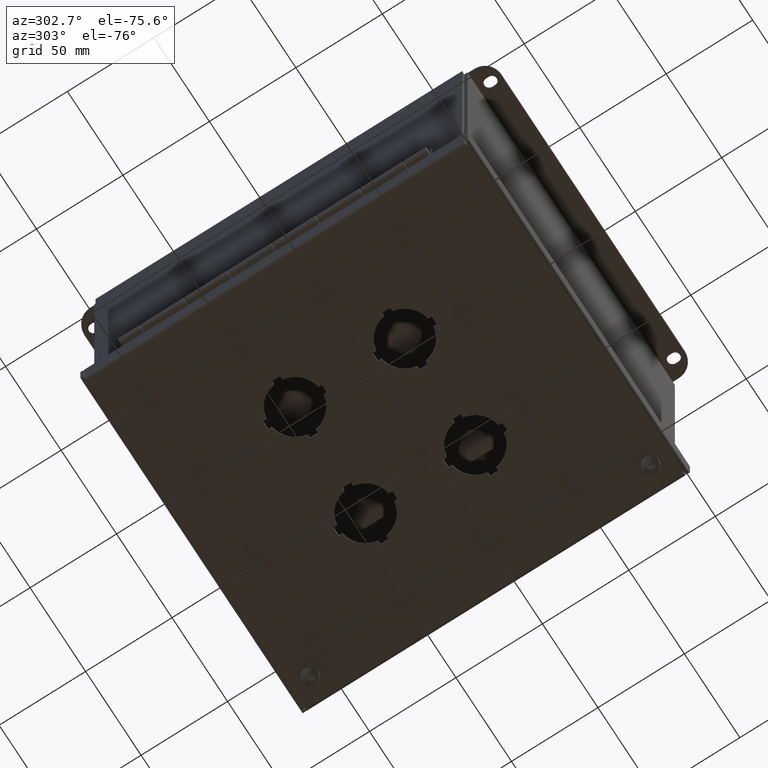
[diagram: clean part render]
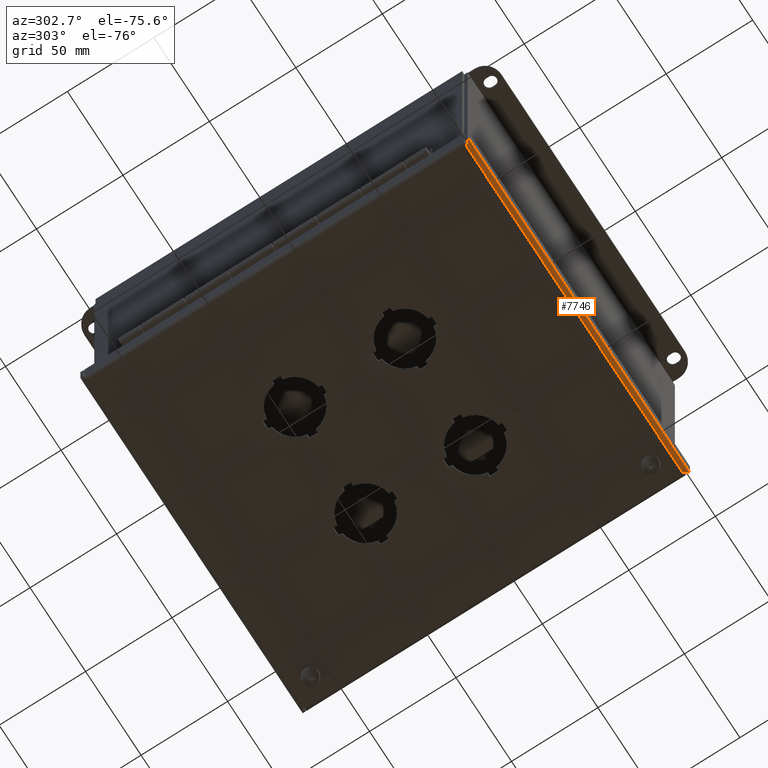
[diagram: same view with one face highlighted and labeled with its STEP entity id]
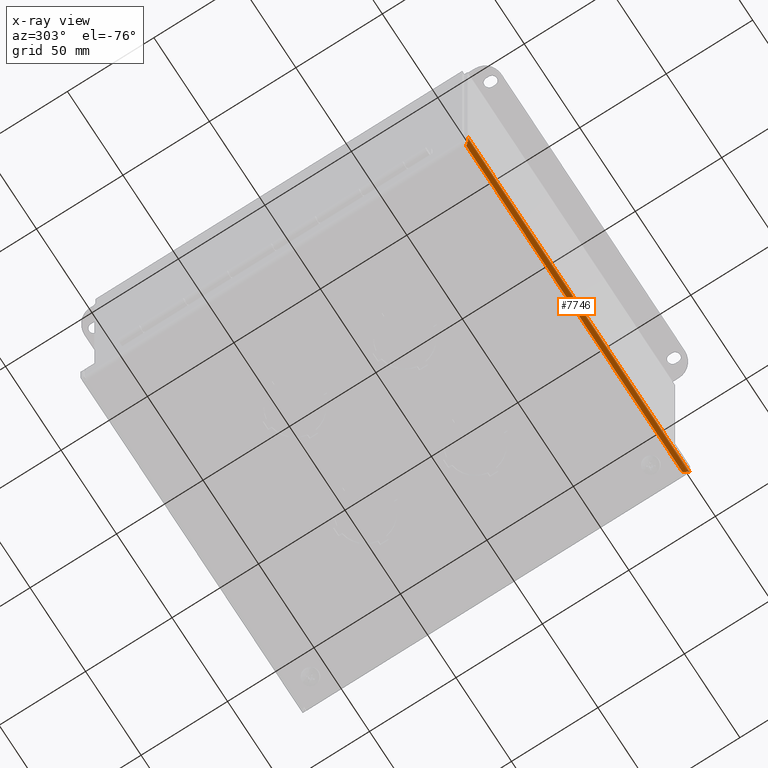
[diagram: x-ray of the same camera — body ghosted, the highlighted face saturated]
A machine part, auxiliary view. The second image highlights one B-rep face of the part: STEP entity #7746.
The next image is the same camera in x-ray: the body ghosted, the highlighted face saturated — about 0% of this face is hidden behind the body in this view.
In plain terms, the highlighted cylindrical surface (edge-blend (fillet) strip) has radius 2.6733 mm, axis along (-1, 0, -0).
Its self-contained STEP definition (entity closure, byte-faithful):
#600=B_SPLINE_CURVE_WITH_KNOTS('',3,(#11183,#11184,#11185,#11186,#11187,
#11188,#11189),.UNSPECIFIED.,.F.,.F.,(4,3,4),(-0.999999999999989,-0.571428571428564,
0.),.UNSPECIFIED.);
#604=B_SPLINE_CURVE_WITH_KNOTS('',3,(#11282,#11283,#11284,#11285,#11286,
#11287,#11288),.UNSPECIFIED.,.F.,.F.,(4,3,4),(-1.,-0.571428571428573,0.),
 .UNSPECIFIED.);
#691=CYLINDRICAL_SURFACE('',#8224,0.10525);
#878=FACE_OUTER_BOUND('',#1319,.T.);
#1319=EDGE_LOOP('',(#5355,#5356,#5357,#5358));
#1992=LINE('',#11841,#2706);
#1993=LINE('',#11842,#2707);
#2706=VECTOR('',#9275,7.88);
#2707=VECTOR('',#9276,7.6695);
#3231=VERTEX_POINT('',#11119);
#3232=VERTEX_POINT('',#11160);
#3236=VERTEX_POINT('',#11257);
#3237=VERTEX_POINT('',#11280);
#3946=EDGE_CURVE('',#3232,#3231,#600,.T.);
#3956=EDGE_CURVE('',#3236,#3237,#604,.T.);
#4176=EDGE_CURVE('',#3236,#3232,#1992,.T.);
#4177=EDGE_CURVE('',#3231,#3237,#1993,.T.);
#5355=ORIENTED_EDGE('',*,*,#4176,.F.);
#5356=ORIENTED_EDGE('',*,*,#3956,.T.);
#5357=ORIENTED_EDGE('',*,*,#4177,.F.);
#5358=ORIENTED_EDGE('',*,*,#3946,.F.);
#7746=ADVANCED_FACE('',(#878),#691,.T.);
#8224=AXIS2_PLACEMENT_3D('',#11840,#9273,#9274);
#9273=DIRECTION('center_axis',(-1.,0.,0.));
#9274=DIRECTION('ref_axis',(0.,-1.,-1.8688176298701E-15));
#9275=DIRECTION('',(1.,5.75339466674832E-33,-9.25216427612674E-49));
#9276=DIRECTION('',(-1.,0.,0.));
#11119=CARTESIAN_POINT('',(7.77475,0.105250000000001,-1.09273919746571E-17));
#11160=CARTESIAN_POINT('',(7.88,1.56261705237596E-15,0.105249999999997));
#11183=CARTESIAN_POINT('Ctrl Pts',(7.88,1.57900814033794E-15,0.105249999999995));
#11184=CARTESIAN_POINT('Ctrl Pts',(7.86496428571426,2.70817197771917E-15,
0.0816319552292632));
#11185=CARTESIAN_POINT('Ctrl Pts',(7.84992857142856,0.00824731108795806,
0.057975563989295));
#11186=CARTESIAN_POINT('Ctrl Pts',(7.83489285714286,0.0229731200750352,
0.0396024550965778));
#11187=CARTESIAN_POINT('Ctrl Pts',(7.81484523809525,0.0426075320578046,
0.0151049765729551));
#11188=CARTESIAN_POINT('Ctrl Pts',(7.79479761904763,0.0737592736390125,
6.7626380740627E-16));
#11189=CARTESIAN_POINT('Ctrl Pts',(7.77475,0.10525,4.80805246884912E-16));
#11257=CARTESIAN_POINT('',(-1.3987061727561E-15,1.56261705237596E-15,0.105250000000003));
#11280=CARTESIAN_POINT('',(0.105250000000002,0.105250000000002,-3.27821759239712E-17));
#11282=CARTESIAN_POINT('Ctrl Pts',(2.45866319429784E-16,1.57900814033794E-15,
0.105250000000003));
#11283=CARTESIAN_POINT('Ctrl Pts',(0.0150357142858078,9.26096469852189E-16,
0.0816319552292583));
#11284=CARTESIAN_POINT('Ctrl Pts',(0.0300714285715047,0.00821784488534683,
0.0579380804505907));
#11285=CARTESIAN_POINT('Ctrl Pts',(0.0451071428571506,0.022939444414908,
0.0395596167666319));
#11286=CARTESIAN_POINT('Ctrl Pts',(0.0651547619046787,0.0425682437876565,
0.0150549985213533));
#11287=CARTESIAN_POINT('Ctrl Pts',(0.0852023809521163,0.07375927363901,
1.49383708778547E-15));
#11288=CARTESIAN_POINT('Ctrl Pts',(0.105250000000008,0.105249999999998,
4.8080524688491E-16));
#11840=CARTESIAN_POINT('Origin',(0.0747071067811885,0.105250000000001,0.10525));
#11841=CARTESIAN_POINT('',(3.94,1.5629184886537E-15,0.10525));
#11842=CARTESIAN_POINT('',(5.857375,0.105250000000001,0.));